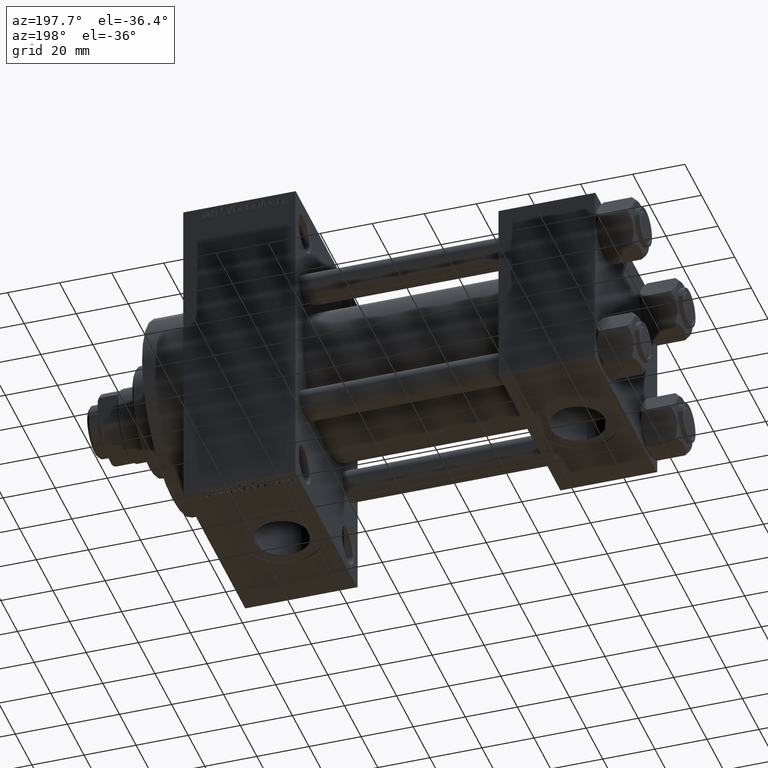
[diagram: clean part render]
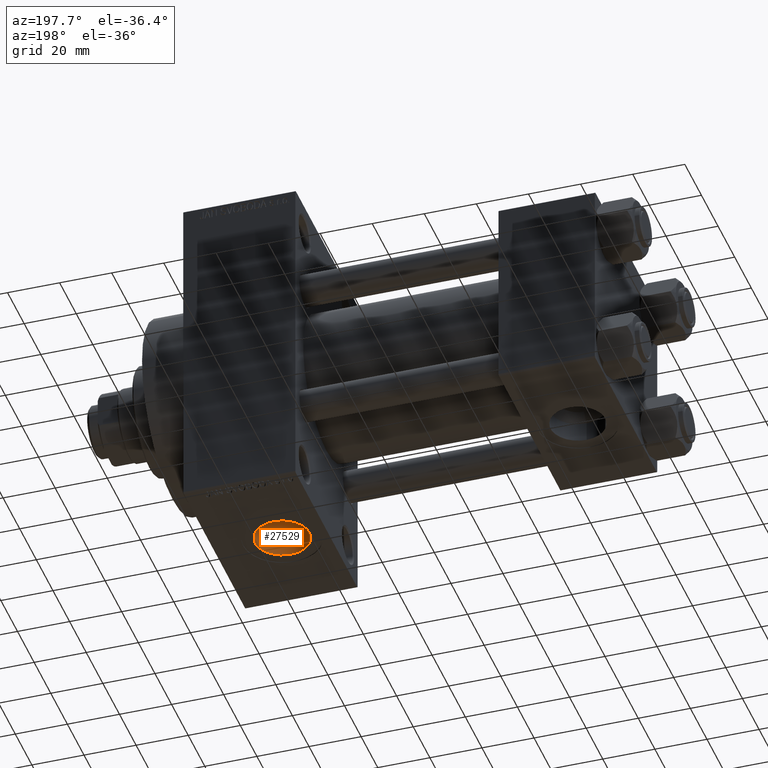
[diagram: same view with one face highlighted and labeled with its STEP entity id]
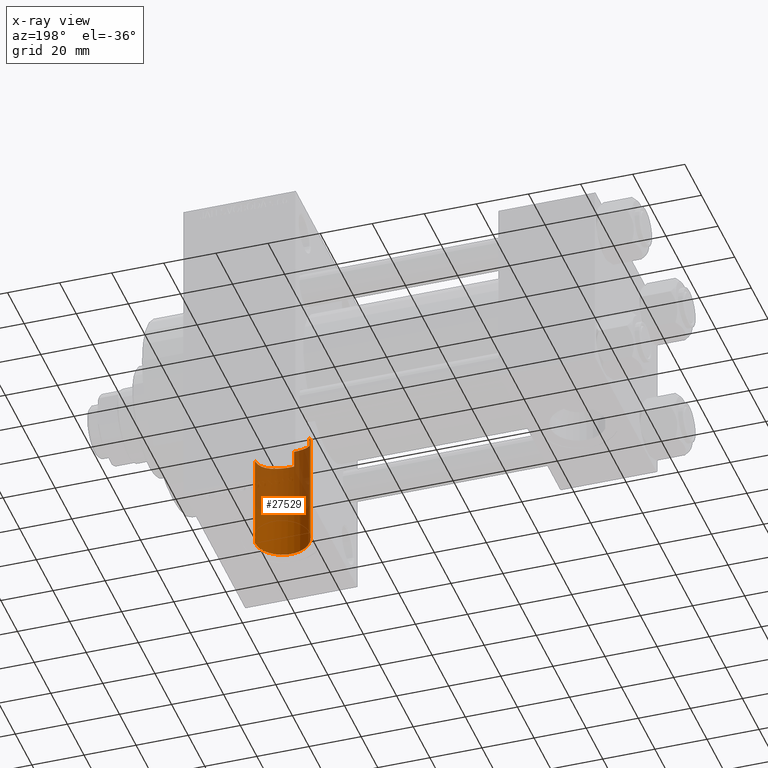
[diagram: x-ray of the same camera — body ghosted, the highlighted face saturated]
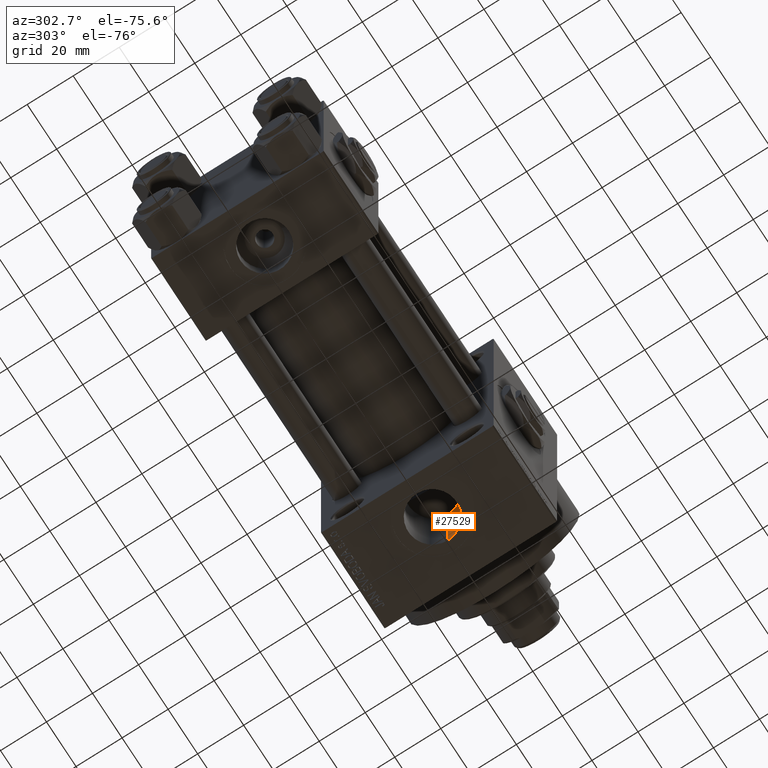
[diagram: same view with one face highlighted and labeled with its STEP entity id]
A machine part, auxiliary view. The second image highlights one B-rep face of the part: STEP entity #27529.
The next image is the same camera in x-ray: the body ghosted, the highlighted face saturated — about 56% of this face is hidden behind the body in this view.
A second angle (auxiliary view) of the same face is appended — the face is thin or edge-on in the first view.
In plain terms, the highlighted cylindrical surface (edge-blend (fillet) strip) has radius 10.48 mm, axis along (-0, -0, -1).
Its self-contained STEP definition (entity closure, byte-faithful):
#477 = EDGE_CURVE ( 'NONE', #9984, #19118, #25864, .T. ) ;
#3060 = CARTESIAN_POINT ( 'NONE',  ( 142.4799999999999898, 1.312580877484143227E-14, 64.00100000000000477 ) ) ;
#3948 = CARTESIAN_POINT ( 'NONE',  ( 141.8335546017134448, -3.642695553053290958, -26.25084325021122922 ) ) ;
#5123 = LINE ( 'NONE', #47902, #8908 ) ;
#5288 = CARTESIAN_POINT ( 'NONE',  ( 142.4800000000001603, 1.044554930096985600E-14, -26.50000000000006750 ) ) ;
#6210 = CARTESIAN_POINT ( 'NONE',  ( 121.5199999999999960, 0.000000000000000000, -20.50000000000000000 ) ) ;
#6467 = CARTESIAN_POINT ( 'NONE',  ( 122.1077553146749182, -3.474995749368322340, -20.20559401248728193 ) ) ;
#6742 = CARTESIAN_POINT ( 'NONE',  ( 130.7400000000000091, -10.40398000767012654, -17.66372554134603945 ) ) ;
#7010 = VECTOR ( 'NONE', #37385, 1000.000000000000000 ) ;
#7659 = CARTESIAN_POINT ( 'NONE',  ( 130.4225795953585418, -10.36553801628285321, -17.68636797365240554 ) ) ;
#7787 = CARTESIAN_POINT ( 'NONE',  ( 141.6993435614955956, -3.985990130492289563, -26.20070574291654353 ) ) ;
#8031 = CARTESIAN_POINT ( 'NONE',  ( 136.8603660912149849, -9.291949300782544441, -24.81826977973610937 ) ) ;
#8081 = ORIENTED_EDGE ( 'NONE', *, *, #13651, .F. ) ;
#8250 = CARTESIAN_POINT ( 'NONE',  ( 132.0000000000000000, 1.184237892933500520E-14, -63.79999999999999716 ) ) ;
#8290 = CARTESIAN_POINT ( 'NONE',  ( 140.8553297434205831, -5.616857363200505660, -25.89992295911058307 ) ) ;
#8908 = VECTOR ( 'NONE', #9218, 1000.000000000000000 ) ;
#9218 = DIRECTION ( 'NONE',  ( -0.000000000000000000, -0.000000000000000000, -1.000000000000000000 ) ) ;
#9984 = VERTEX_POINT ( 'NONE', #5288 ) ;
#10564 = CARTESIAN_POINT ( 'NONE',  ( 123.7769566313750857, -6.504697465954986768, -19.44246152570332953 ) ) ;
#11022 = AXIS2_PLACEMENT_3D ( 'NONE', #34353, #22804, #29734 ) ;
#11880 = CARTESIAN_POINT ( 'NONE',  ( 140.6508763872861323, -5.926808359427509387, -25.83050513016100069 ) ) ;
#13651 = EDGE_CURVE ( 'NONE', #9984, #23867, #20977, .T. ) ;
#15718 = CARTESIAN_POINT ( 'NONE',  ( 138.6874981071936759, -8.077221093107572969, -25.24030799844106454 ) ) ;
#15969 = CARTESIAN_POINT ( 'NONE',  ( 142.0665133812162537, -2.938253791439163987, -26.33899517628734088 ) ) ;
#16814 = B_SPLINE_CURVE_WITH_KNOTS ( 'NONE', 3,
 ( #6210, #17972, #37723, #33893, #31232, #34830, #6467, #39160, #33640, #45670, #37457, #10564, #45163, #30981, #23042, #23531, #49504, #22088, #46609, #38665, #49253, #23286, #48990, #29527, #7659, #29783 ),
 .UNSPECIFIED., .F., .F.,
 ( 4, 2, 2, 2, 2, 2, 2, 2, 2, 2, 2, 2, 4 ),
 ( 1.281809622955458992E-17, 0.001928582083489948111, 0.002892873125234912083, 0.003857164166979875838, 0.005785746250469799880, 0.006750037292214761467, 0.007714328333959721319, 0.009642910417449614136, 0.01060720145919459394, 0.01157149250093957027, 0.01350007458442952467, 0.01446436562617450100, 0.01542865666791947733 ),
 .UNSPECIFIED. ) ;
#17972 = CARTESIAN_POINT ( 'NONE',  ( 121.5200000000000244, -0.6528536155700493948, -20.50000000000002487 ) ) ;
#18097 = AXIS2_PLACEMENT_3D ( 'NONE', #8250, #36921, #35915 ) ;
#19118 = VERTEX_POINT ( 'NONE', #22624 ) ;
#19698 = CARTESIAN_POINT ( 'NONE',  ( 130.7400000000000091, -10.40398000767012832, -24.37226292324946186 ) ) ;
#19822 = CARTESIAN_POINT ( 'NONE',  ( 139.5076201536012093, -7.348534936426551312, -25.46581292754183679 ) ) ;
#20977 = B_SPLINE_CURVE_WITH_KNOTS ( 'NONE', 3,
 ( #31360, #27262, #27754, #42902, #15969, #3948, #7787, #27008, #23416, #8290, #11880, #35211, #19822, #15718, #43401, #46995, #27504, #8031, #23665, #23923, #39548, #31857, #44651, #48496, #21336, #29016 ),
 .UNSPECIFIED., .F., .F.,
 ( 4, 2, 2, 2, 2, 2, 2, 2, 2, 2, 2, 2, 4 ),
 ( 0.01781170071191079049, 0.02003745927526348961, 0.02115033855693983916, 0.02226321783861619219, 0.02337609712029254175, 0.02448897640196889131, 0.02671473496532159389, 0.02782761424699794345, 0.02894049352867429648, 0.03005337281035064950, 0.03116625209202700253, 0.03339201065537962532, 0.03561776921873225504 ),
 .UNSPECIFIED. ) ;
#21336 = CARTESIAN_POINT ( 'NONE',  ( 131.4868983507927283, -10.49443499905852661, -24.33364968799253703 ) ) ;
#22088 = CARTESIAN_POINT ( 'NONE',  ( 126.5716846934029292, -8.970050497710426285, -18.43430574681927681 ) ) ;
#22555 = FACE_OUTER_BOUND ( 'NONE', #44547, .T. ) ;
#22624 = CARTESIAN_POINT ( 'NONE',  ( 142.4799999999999898, 1.312580877484143385E-14, -63.79999999999999716 ) ) ;
#22804 = DIRECTION ( 'NONE',  ( -0.000000000000000000, -0.000000000000000000, -1.000000000000000000 ) ) ;
#22840 = VERTEX_POINT ( 'NONE', #33307 ) ;
#23042 = CARTESIAN_POINT ( 'NONE',  ( 125.0490774207148945, -7.868098065715665612, -18.93464101284402901 ) ) ;
#23286 = CARTESIAN_POINT ( 'NONE',  ( 129.1673246239662376, -10.09499288278950679, -17.84245449827066921 ) ) ;
#23416 = CARTESIAN_POINT ( 'NONE',  ( 141.2276638786151750, -4.981583166679961039, -26.02957788900645397 ) ) ;
#23531 = CARTESIAN_POINT ( 'NONE',  ( 125.7886313895240420, -8.446731495290151770, -18.68012650949457409 ) ) ;
#23665 = CARTESIAN_POINT ( 'NONE',  ( 136.5335921408433251, -9.455792512420339690, -24.75606841526505519 ) ) ;
#23867 = VERTEX_POINT ( 'NONE', #19698 ) ;
#23923 = CARTESIAN_POINT ( 'NONE',  ( 135.8600678267363833, -9.750145953289925060, -24.64162310621548713 ) ) ;
#24980 = ORIENTED_EDGE ( 'NONE', *, *, #50139, .T. ) ;
#25286 = EDGE_CURVE ( 'NONE', #22840, #42138, #42542, .T. ) ;
#25864 = LINE ( 'NONE', #3060, #7010 ) ;
#27008 = CARTESIAN_POINT ( 'NONE',  ( 141.3963988635402700, -4.655434592126345805, -26.09007526830297863 ) ) ;
#27262 = CARTESIAN_POINT ( 'NONE',  ( 142.4800000000000466, -0.7466733969459936615, -26.50000000000001421 ) ) ;
#27504 = CARTESIAN_POINT ( 'NONE',  ( 137.4947120380321905, -8.931495953537146093, -24.95025484238639990 ) ) ;
#27529 = ADVANCED_FACE ( 'NONE', ( #22555 ), #49208, .F. ) ;
#27754 = CARTESIAN_POINT ( 'NONE',  ( 142.4011065554137758, -1.483758503940583839, -26.46850309434598003 ) ) ;
#28942 = VERTEX_POINT ( 'NONE', #6742 ) ;
#29016 = CARTESIAN_POINT ( 'NONE',  ( 130.7400000000000091, -10.40398000767012832, -24.37226292324946186 ) ) ;
#29527 = CARTESIAN_POINT ( 'NONE',  ( 130.1072126054413047, -10.31263708575104410, -17.71738084614143816 ) ) ;
#29734 = DIRECTION ( 'NONE',  ( -1.000000000000000000, 0.000000000000000000, 0.000000000000000000 ) ) ;
#29783 = CARTESIAN_POINT ( 'NONE',  ( 130.7400000000000091, -10.40398000767012654, -17.66372554134603945 ) ) ;
#30981 = CARTESIAN_POINT ( 'NONE',  ( 124.5963801251596266, -7.443404596970336407, -19.10731866551383717 ) ) ;
#31232 = CARTESIAN_POINT ( 'NONE',  ( 121.8298759508172537, -2.549942128651307538, -20.34318646862824309 ) ) ;
#31360 = CARTESIAN_POINT ( 'NONE',  ( 142.4800000000001603, 1.044554930096985600E-14, -26.50000000000006750 ) ) ;
#31531 = ORIENTED_EDGE ( 'NONE', *, *, #25286, .F. ) ;
#31857 = CARTESIAN_POINT ( 'NONE',  ( 134.4459359432478323, -10.21777125531389174, -24.45211332338677579 ) ) ;
#33307 = CARTESIAN_POINT ( 'NONE',  ( 121.5199999999999960, 0.000000000000000000, -20.50000000000000000 ) ) ;
#33640 = CARTESIAN_POINT ( 'NONE',  ( 122.7318556732539889, -4.932295487640244502, -19.90558767025279607 ) ) ;
#33893 = CARTESIAN_POINT ( 'NONE',  ( 121.7567443580818889, -2.238001475703822685, -20.37992425889976644 ) ) ;
#34353 = CARTESIAN_POINT ( 'NONE',  ( 132.0000000000000000, 1.184237892933500520E-14, 64.00100000000000477 ) ) ;
#34830 = CARTESIAN_POINT ( 'NONE',  ( 122.0051786905866038, -3.168150095581362180, -20.25611674355964809 ) ) ;
#35211 = CARTESIAN_POINT ( 'NONE',  ( 139.9981355541606547, -6.811571481472481260, -25.61680511670812876 ) ) ;
#35915 = DIRECTION ( 'NONE',  ( -1.000000000000000000, 0.000000000000000000, 0.000000000000000000 ) ) ;
#36921 = DIRECTION ( 'NONE',  ( 0.000000000000000000, 0.000000000000000000, -1.000000000000000000 ) ) ;
#37385 = DIRECTION ( 'NONE',  ( -0.000000000000000000, -0.000000000000000000, -1.000000000000000000 ) ) ;
#37457 = CARTESIAN_POINT ( 'NONE',  ( 123.4012975811646271, -5.999320634722093537, -19.60429930458758108 ) ) ;
#37723 = CARTESIAN_POINT ( 'NONE',  ( 121.5804533847565239, -1.293675127890872467, -20.46890955274491120 ) ) ;
#38185 = CARTESIAN_POINT ( 'NONE',  ( 121.5199999999999960, 1.184237892933500520E-14, 64.00100000000000477 ) ) ;
#38665 = CARTESIAN_POINT ( 'NONE',  ( 127.6706505986493454, -9.564391659780367760, -18.13502008602353044 ) ) ;
#39160 = CARTESIAN_POINT ( 'NONE',  ( 122.4521473028367922, -4.367574883519887763, -20.03848270351838678 ) ) ;
#39548 = CARTESIAN_POINT ( 'NONE',  ( 135.5115735695664227, -9.881194972351261541, -24.58915736193083390 ) ) ;
#39910 = EDGE_CURVE ( 'NONE', #28942, #23867, #5123, .T. ) ;
#42138 = VERTEX_POINT ( 'NONE', #49629 ) ;
#42144 = ORIENTED_EDGE ( 'NONE', *, *, #39910, .T. ) ;
#42542 = LINE ( 'NONE', #38185, #47730 ) ;
#42676 = CIRCLE ( 'NONE', #18097, 10.48000000000000398 ) ;
#42902 = CARTESIAN_POINT ( 'NONE',  ( 142.1654842721634111, -2.575241489874372736, -26.37710048711162969 ) ) ;
#43401 = CARTESIAN_POINT ( 'NONE',  ( 138.3983008714430412, -8.308216825530742256, -25.16494175890555596 ) ) ;
#44547 = EDGE_LOOP ( 'NONE', ( #8081, #45074, #24980, #31531, #50391, #42144 ) ) ;
#44651 = CARTESIAN_POINT ( 'NONE',  ( 133.7216423275558839, -10.36418010715236093, -24.38933169417625635 ) ) ;
#45074 = ORIENTED_EDGE ( 'NONE', *, *, #477, .T. ) ;
#45163 = CARTESIAN_POINT ( 'NONE',  ( 123.9745969989962759, -6.746863825720295971, -19.35951453838939429 ) ) ;
#45670 = CARTESIAN_POINT ( 'NONE',  ( 123.2242076621954965, -5.737140259173459711, -19.68280242916262424 ) ) ;
#46609 = CARTESIAN_POINT ( 'NONE',  ( 126.8412797176562634, -9.127738962289496882, -18.35649794410253932 ) ) ;
#46995 = CARTESIAN_POINT ( 'NONE',  ( 137.8022832347253086, -8.734885810676995987, -25.02004257437574708 ) ) ;
#47730 = VECTOR ( 'NONE', #49979, 1000.000000000000000 ) ;
#47902 = CARTESIAN_POINT ( 'NONE',  ( 130.7400000000000091, -10.40398000767012832, 64.00100000000000477 ) ) ;
#48133 = EDGE_CURVE ( 'NONE', #22840, #28942, #16814, .T. ) ;
#48496 = CARTESIAN_POINT ( 'NONE',  ( 132.2451057705677329, -10.50334255171939013, -24.32972513250578928 ) ) ;
#48990 = CARTESIAN_POINT ( 'NONE',  ( 129.4805529816394767, -10.17769691556406819, -17.79523962200410381 ) ) ;
#49208 = CYLINDRICAL_SURFACE ( 'NONE', #11022, 10.48000000000000398 ) ;
#49253 = CARTESIAN_POINT ( 'NONE',  ( 128.2507896038889328, -9.807341421808922988, -18.00317498503503089 ) ) ;
#49504 = CARTESIAN_POINT ( 'NONE',  ( 126.0459156259491067, -8.630022726852676129, -18.59591734851216316 ) ) ;
#49629 = CARTESIAN_POINT ( 'NONE',  ( 121.5199999999999960, 1.184237892933500520E-14, -63.79999999999999716 ) ) ;
#49979 = DIRECTION ( 'NONE',  ( -0.000000000000000000, -0.000000000000000000, -1.000000000000000000 ) ) ;
#50139 = EDGE_CURVE ( 'NONE', #19118, #42138, #42676, .T. ) ;
#50391 = ORIENTED_EDGE ( 'NONE', *, *, #48133, .T. ) ;